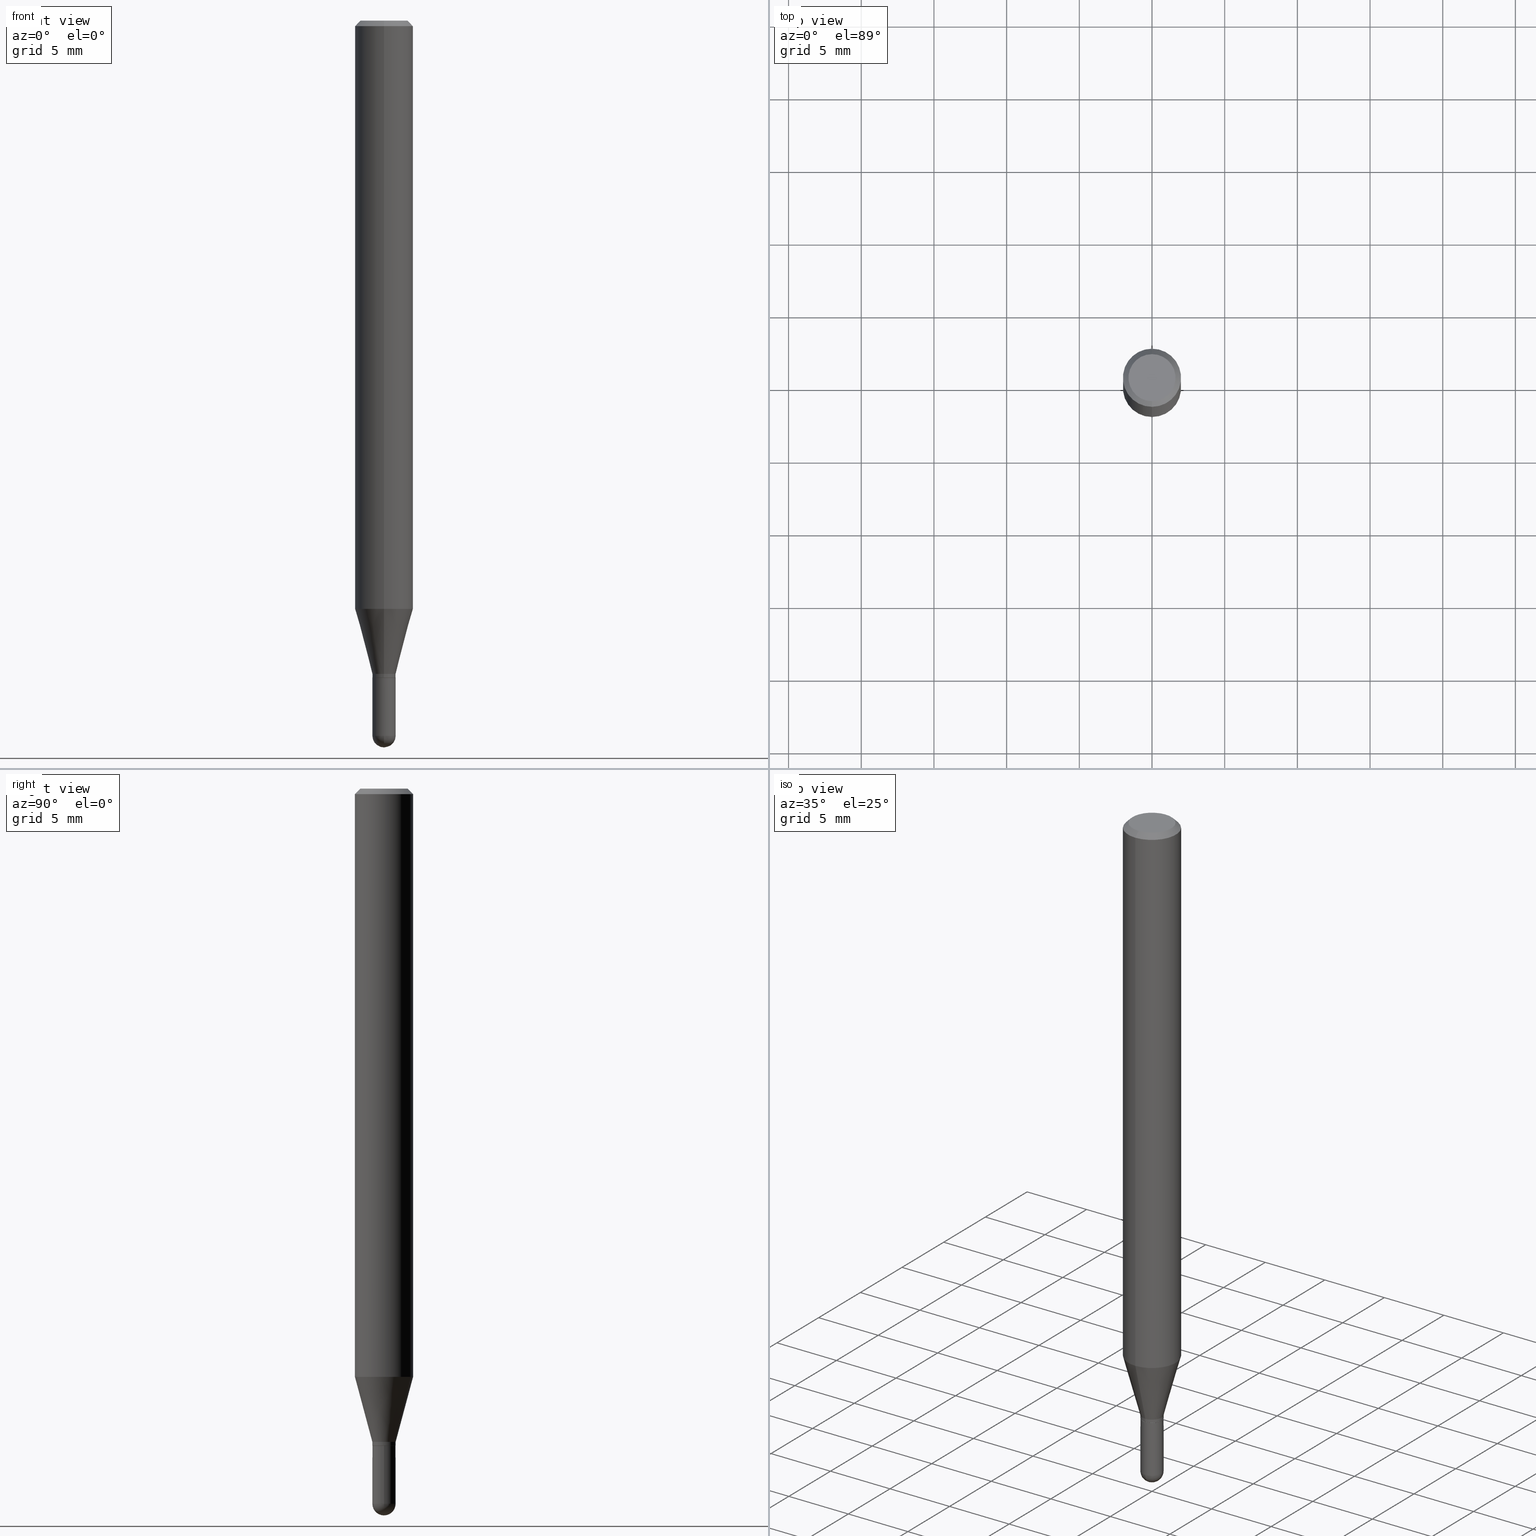
[diagram: canonical four-view strip — front | top / right | iso, engineering-drawing reading convention]
A machine part, canonical four-view strip (front | top / right | iso — engineering-drawing reading convention). The complete STEP part file that produces these views, byte-faithful:
ISO-10303-21;
HEADER;
FILE_DESCRIPTION (( 'STEP AP203' ),
    '1' );
FILE_NAME ('03009.STEP',
    '2024-03-08T18:00:13',
    ( '' ),
    ( '' ),
    'SwSTEP 2.0',
    'SolidWorks 2023',
    '' );
FILE_SCHEMA (( 'CONFIG_CONTROL_DESIGN' ));
ENDSEC;

DATA;
#1 = PERSON ( 'UNSPECIFIED', 'UNSPECIFIED', 'UNSPECIFIED', ('UNSPECIFIED'), ('UNSPECIFIED'), ('UNSPECIFIED') ) ;
#2 = FACE_OUTER_BOUND ( 'NONE', #425, .T. ) ;
#3 = CARTESIAN_POINT ( 'NONE',  ( 3.668279301993772364E-31, -5.237113039164392563E-17, -0.01500000000000001679 ) ) ;
#4 = DIRECTION ( 'NONE',  ( -1.000000000000000000, 6.982962677686265922E-15, -4.883557194083112901E-29 ) ) ;
#5 = AXIS2_PLACEMENT_3D ( 'NONE', #436, #128, #208 ) ;
#6 = DIRECTION ( 'NONE',  ( -6.982962677686265922E-15, -1.000000000000000000, 0.000000000000000000 ) ) ;
#7 = EDGE_CURVE ( 'NONE', #134, #237, #273, .T. ) ;
#8 = CARTESIAN_POINT ( 'NONE',  ( 3.668279301993772364E-31, -5.237113039164392563E-17, -0.01500000000000001679 ) ) ;
#9 = DIRECTION ( 'NONE',  ( -2.445519534662512469E-29, 3.491408692776257814E-15, 1.000000000000000000 ) ) ;
#10 = CARTESIAN_POINT ( 'NONE',  ( 3.896105367546402533E-29, -5.562374765532584086E-15, -1.593160599342370087 ) ) ;
#11 = ORIENTED_EDGE ( 'NONE', *, *, #375, .T. ) ;
#12 = CALENDAR_DATE ( 2024, 8, 3 ) ;
#13 = ORIENTED_EDGE ( 'NONE', *, *, #130, .T. ) ;
#14 = AXIS2_PLACEMENT_3D ( 'NONE', #3, #86, #280 ) ;
#15 = ORIENTED_EDGE ( 'NONE', *, *, #168, .F. ) ;
#16 = APPROVAL_DATE_TIME ( #94, #151 ) ;
#17 = PERSON_AND_ORGANIZATION ( #1, #200 ) ;
#18 = CC_DESIGN_PERSON_AND_ORGANIZATION_ASSIGNMENT ( #259, #217, ( #509 ) ) ;
#19 = APPROVAL_ROLE ( '' ) ;
#20 = AXIS2_PLACEMENT_3D ( 'NONE', #150, #461, #106 ) ;
#21 = LOCAL_TIME ( 13, 0, 13.00000000000000000, #287 ) ;
#22 = DATE_TIME_ROLE ( 'classification_date' ) ;
#23 = VERTEX_POINT ( 'NONE', #470 ) ;
#24 = ORIENTED_EDGE ( 'NONE', *, *, #105, .F. ) ;
#25 = DIRECTION ( 'NONE',  ( -2.445519534662512469E-29, 3.491408692776257814E-15, 1.000000000000000000 ) ) ;
#26 = CARTESIAN_POINT ( 'NONE',  ( -2.199633243470716336E-16, -0.03150000000000582195, -1.769500000000000073 ) ) ;
#27 = AXIS2_PLACEMENT_3D ( 'NONE', #363, #9, #6 ) ;
#28 = DIRECTION ( 'NONE',  ( -6.982962677686265922E-15, -1.000000000000000000, 3.491408692776257420E-15 ) ) ;
#29 = EDGE_CURVE ( 'NONE', #23, #171, #501, .T. ) ;
#30 = CARTESIAN_POINT ( 'NONE',  ( 5.595524044110787031E-16, 0.07875000000000000056, -2.749484345561302999E-16 ) ) ;
#31 = DIRECTION ( 'NONE',  ( -2.445519534662512469E-29, 3.491408692776257814E-15, 1.000000000000000000 ) ) ;
#32 = CC_DESIGN_PERSON_AND_ORGANIZATION_ASSIGNMENT ( #98, #431, ( #114 ) ) ;
#33 = ORIENTED_EDGE ( 'NONE', *, *, #74, .F. ) ;
#34 = DIRECTION ( 'NONE',  ( -2.445468806185136597E-29, 3.491481338843145583E-15, 1.000000000000000000 ) ) ;
#35 = AXIS2_PLACEMENT_3D ( 'NONE', #269, #430, #194 ) ;
#36 = CIRCLE ( 'NONE', #488, 0.07875000000000000056 ) ;
#37 = ORIENTED_EDGE ( 'NONE', *, *, #434, .T. ) ;
#38 = FACE_OUTER_BOUND ( 'NONE', #396, .T. ) ;
#39 = CARTESIAN_POINT ( 'NONE',  ( 0.000000000000000000, 0.000000000000000000, 0.000000000000000000 ) ) ;
#40 = VERTEX_POINT ( 'NONE', #391 ) ;
#41 = CARTESIAN_POINT ( 'NONE',  ( 4.734179303769695037E-29, -6.766856990756487063E-15, -1.937000000000000055 ) ) ;
#42 = FACE_OUTER_BOUND ( 'NONE', #368, .T. ) ;
#43 = EDGE_LOOP ( 'NONE', ( #142, #251, #37, #496 ) ) ;
#44 = EDGE_CURVE ( 'NONE', #312, #303, #384, .T. ) ;
#45 = CYLINDRICAL_SURFACE ( 'NONE', #256, 0.03149999999999992389 ) ;
#46 = DIRECTION ( 'NONE',  ( -2.445468806185136597E-29, 3.491481338843145583E-15, 1.000000000000000000 ) ) ;
#47 = AXIS2_PLACEMENT_3D ( 'NONE', #8, #359, #283 ) ;
#48 =( GEOMETRIC_REPRESENTATION_CONTEXT ( 3 ) GLOBAL_UNCERTAINTY_ASSIGNED_CONTEXT ( ( #454 ) ) GLOBAL_UNIT_ASSIGNED_CONTEXT ( ( #57, #324, #485 ) ) REPRESENTATION_CONTEXT ( 'NONE', 'WORKASPACE' ) );
#49 = DIRECTION ( 'NONE',  ( -2.445519534662512469E-29, 3.491408692776257814E-15, 1.000000000000000000 ) ) ;
#50 = DIRECTION ( 'NONE',  ( 1.000000000000000000, -6.982962677686254878E-15, 0.000000000000000000 ) ) ;
#51 = VERTEX_POINT ( 'NONE', #304 ) ;
#52 = ADVANCED_FACE ( 'NONE', ( #195 ), #191, .F. ) ;
#53 = CARTESIAN_POINT ( 'NONE',  ( -2.199633243470759970E-16, -0.03150000000000651584, -1.779000000000000137 ) ) ;
#54 = EDGE_CURVE ( 'NONE', #463, #176, #499, .T. ) ;
#55 = ORIENTED_EDGE ( 'NONE', *, *, #138, .F. ) ;
#56 = ORIENTED_EDGE ( 'NONE', *, *, #130, .F. ) ;
#57 =( CONVERSION_BASED_UNIT ( 'INCH', #219 ) LENGTH_UNIT ( ) NAMED_UNIT ( #58 ) );
#58 = DIMENSIONAL_EXPONENTS ( 1.000000000000000000, 0.000000000000000000, 0.000000000000000000, 0.000000000000000000, 0.000000000000000000, 0.000000000000000000, 0.000000000000000000 ) ;
#59 = AXIS2_PLACEMENT_3D ( 'NONE', #210, #166, #403 ) ;
#60 = CALENDAR_DATE ( 2024, 8, 3 ) ;
#61 = PERSON_AND_ORGANIZATION ( #1, #200 ) ;
#62 = CIRCLE ( 'NONE', #220, 0.03150000000000019451 ) ;
#63 = ADVANCED_FACE ( 'NONE', ( #504 ), #155, .F. ) ;
#64 = CALENDAR_DATE ( 2024, 8, 3 ) ;
#65 = EDGE_LOOP ( 'NONE', ( #483, #190, #145, #337 ) ) ;
#66 = EDGE_CURVE ( 'NONE', #213, #388, #351, .T. ) ;
#67 = EDGE_LOOP ( 'NONE', ( #227, #211, #262, #409, #427 ) ) ;
#68 = EDGE_CURVE ( 'NONE', #506, #23, #197, .T. ) ;
#69 = DIRECTION ( 'NONE',  ( -4.851104656540965064E-15, -0.7071067811865501263, -0.7071067811865449082 ) ) ;
#70 = EDGE_CURVE ( 'NONE', #51, #498, #62, .T. ) ;
#71 = CARTESIAN_POINT ( 'NONE',  ( 2.199633243471609228E-16, 0.03149999999999378297, -1.779499999999999860 ) ) ;
#72 = CC_DESIGN_APPROVAL ( #348, ( #114 ) ) ;
#73 = EDGE_LOOP ( 'NONE', ( #154, #91, #400, #174 ) ) ;
#74 = EDGE_CURVE ( 'NONE', #101, #506, #469, .T. ) ;
#75 = CARTESIAN_POINT ( 'NONE',  ( -2.199633243471168452E-16, -0.03149999999999992389, 1.099793738224518488E-16 ) ) ;
#76 = ORIENTED_EDGE ( 'NONE', *, *, #453, .T. ) ;
#77 = DIRECTION ( 'NONE',  ( -6.982962677686265922E-15, -1.000000000000000000, 3.491408692776257814E-15 ) ) ;
#78 = FACE_OUTER_BOUND ( 'NONE', #294, .T. ) ;
#79 = ORIENTED_EDGE ( 'NONE', *, *, #135, .F. ) ;
#80 = CARTESIAN_POINT ( 'NONE',  ( 5.499083108677937401E-16, 0.07874999999999994504, -0.01500000000000029261 ) ) ;
#81 = CC_DESIGN_DATE_AND_TIME_ASSIGNMENT ( #467, #22, ( #114 ) ) ;
#82 = AXIS2_PLACEMENT_3D ( 'NONE', #246, #358, #402 ) ;
#83 = DIRECTION ( 'NONE',  ( -2.445468806185136597E-29, 3.491481338843145583E-15, 1.000000000000000000 ) ) ;
#84 = DIRECTION ( 'NONE',  ( 6.982962677686265922E-15, 1.000000000000000000, 0.000000000000000000 ) ) ;
#85 = CARTESIAN_POINT ( 'NONE',  ( 4.114624516032520270E-46, -5.874349233022489660E-32, -1.682515497305298993E-17 ) ) ;
#86 = DIRECTION ( 'NONE',  ( 2.445519534662512469E-29, -3.491408692776257814E-15, -1.000000000000000000 ) ) ;
#87 = DIRECTION ( 'NONE',  ( -6.982962677686265922E-15, -1.000000000000000000, 0.000000000000000000 ) ) ;
#88 = CARTESIAN_POINT ( 'NONE',  ( 4.975360907851465623E-16, 0.06374999999999998723, -2.394024591375393642E-16 ) ) ;
#89 = CARTESIAN_POINT ( 'NONE',  ( 3.668279301993772364E-31, -5.237113039164392563E-17, -0.01500000000000001679 ) ) ;
#90 = VECTOR ( 'NONE', #121, 39.37007874015748143 ) ;
#91 = ORIENTED_EDGE ( 'NONE', *, *, #135, .T. ) ;
#92 = DIRECTION ( 'NONE',  ( 0.000000000000000000, 0.000000000000000000, 1.000000000000000000 ) ) ;
#93 = EDGE_LOOP ( 'NONE', ( #497, #76 ) ) ;
#94 = DATE_AND_TIME ( #12, #21 ) ;
#95 = EDGE_CURVE ( 'NONE', #303, #378, #267, .T. ) ;
#96 = CIRCLE ( 'NONE', #284, 0.03150000000000000716 ) ;
#97 = APPROVAL_DATE_TIME ( #490, #495 ) ;
#98 = PERSON_AND_ORGANIZATION ( #1, #200 ) ;
#99 = ORIENTED_EDGE ( 'NONE', *, *, #502, .F. ) ;
#100 = SHAPE_DEFINITION_REPRESENTATION ( #373, #314 ) ;
#101 = VERTEX_POINT ( 'NONE', #26 ) ;
#102 = VECTOR ( 'NONE', #224, 39.37007874015748143 ) ;
#103 = CIRCLE ( 'NONE', #508, 0.07875000000000000056 ) ;
#104 = CC_DESIGN_APPROVAL ( #151, ( #181 ) ) ;
#105 = EDGE_CURVE ( 'NONE', #101, #335, #226, .T. ) ;
#106 = DIRECTION ( 'NONE',  ( -6.982962677686265922E-15, -1.000000000000000000, 0.000000000000000000 ) ) ;
#107 = ADVANCED_FACE ( 'NONE', ( #382 ), #109, .T. ) ;
#108 = ORIENTED_EDGE ( 'NONE', *, *, #164, .T. ) ;
#109 = CYLINDRICAL_SURFACE ( 'NONE', #35, 0.03149999999999992389 ) ;
#110 = ORIENTED_EDGE ( 'NONE', *, *, #453, .F. ) ;
#111 = CARTESIAN_POINT ( 'NONE',  ( -2.199633243470716336E-16, -0.03150000000000582195, -1.769500000000000073 ) ) ;
#112 = DIRECTION ( 'NONE',  ( -1.000000000000000000, 6.982962677686265922E-15, -4.883557194083112901E-29 ) ) ;
#113 = AXIS2_PLACEMENT_3D ( 'NONE', #279, #159, #471 ) ;
#114 = SECURITY_CLASSIFICATION ( '', '', #141 ) ;
#115 = DIRECTION ( 'NONE',  ( -2.445519534662512469E-29, 3.491408692776257814E-15, 1.000000000000000000 ) ) ;
#116 = CARTESIAN_POINT ( 'NONE',  ( 4.734179303769695037E-29, -6.766856990756487063E-15, -1.937000000000000055 ) ) ;
#117 = CARTESIAN_POINT ( 'NONE',  ( 4.351802011931940381E-29, -6.212961768795349013E-15, -1.779499999999999638 ) ) ;
#118 = ORIENTED_EDGE ( 'NONE', *, *, #95, .F. ) ;
#119 = CARTESIAN_POINT ( 'NONE',  ( 2.220446049250754843E-16, 0.03099999999999378253, -1.779499999999999638 ) ) ;
#120 = DIRECTION ( 'NONE',  ( -2.445519534662512469E-29, 3.491408692776257814E-15, 1.000000000000000000 ) ) ;
#121 = DIRECTION ( 'NONE',  ( -2.445519534662512469E-29, 3.491408692776257814E-15, 1.000000000000000000 ) ) ;
#122 = AXIS2_PLACEMENT_3D ( 'NONE', #433, #115, #28 ) ;
#123 = CIRCLE ( 'NONE', #487, 0.03149999999999996553 ) ;
#124 = FACE_OUTER_BOUND ( 'NONE', #330, .T. ) ;
#125 = DIRECTION ( 'NONE',  ( -7.105427357601000281E-15, -1.000000000000000000, 0.000000000000000000 ) ) ;
#126 = SPHERICAL_SURFACE ( 'NONE', #429, 0.03149999999999996553 ) ;
#127 = CARTESIAN_POINT ( 'NONE',  ( 0.000000000000000000, 0.000000000000000000, 0.000000000000000000 ) ) ;
#128 = DIRECTION ( 'NONE',  ( -2.445519534662512469E-29, 3.491408692776257814E-15, 1.000000000000000000 ) ) ;
#129 = CC_DESIGN_PERSON_AND_ORGANIZATION_ASSIGNMENT ( #61, #452, ( #181 ) ) ;
#130 = EDGE_CURVE ( 'NONE', #498, #101, #464, .T. ) ;
#131 = DIRECTION ( 'NONE',  ( -6.982962677686265922E-15, -1.000000000000000000, 0.000000000000000000 ) ) ;
#132 = VECTOR ( 'NONE', #265, 39.37007874015748143 ) ;
#133 = APPLICATION_PROTOCOL_DEFINITION ( 'international standard', 'config_control_design', 1994, #413 ) ;
#134 = VERTEX_POINT ( 'NONE', #507 ) ;
#135 = EDGE_CURVE ( 'NONE', #176, #51, #389, .T. ) ;
#136 = DATE_AND_TIME ( #285, #293 ) ;
#137 = DIRECTION ( 'NONE',  ( -2.445519534662512469E-29, 3.491408692776257814E-15, 1.000000000000000000 ) ) ;
#138 = EDGE_CURVE ( 'NONE', #40, #388, #238, .T. ) ;
#139 = ORIENTED_EDGE ( 'NONE', *, *, #291, .T. ) ;
#140 = CIRCLE ( 'NONE', #421, 0.03150000000000000716 ) ;
#141 = SECURITY_CLASSIFICATION_LEVEL ( 'unclassified' ) ;
#142 = ORIENTED_EDGE ( 'NONE', *, *, #325, .F. ) ;
#143 = EDGE_LOOP ( 'NONE', ( #79, #404, #108, #218 ) ) ;
#144 = PERSON_AND_ORGANIZATION ( #1, #200 ) ;
#145 = ORIENTED_EDGE ( 'NONE', *, *, #160, .T. ) ;
#146 = DIRECTION ( 'NONE',  ( -6.982962677686265922E-15, -1.000000000000000000, 0.000000000000000000 ) ) ;
#147 = CIRCLE ( 'NONE', #264, 0.03150000000000000022 ) ;
#148 = APPROVAL_ROLE ( '' ) ;
#149 = EDGE_LOOP ( 'NONE', ( #491, #254, #33, #56 ) ) ;
#150 = CARTESIAN_POINT ( 'NONE',  ( 4.327346816585315421E-29, -6.178047681867588652E-15, -1.769500000000000073 ) ) ;
#151 = APPROVAL ( #372, 'UNSPECIFIED' ) ;
#152 = ORIENTED_EDGE ( 'NONE', *, *, #66, .F. ) ;
#153 = CARTESIAN_POINT ( 'NONE',  ( 2.238209617644722851E-16, 0.03149999999999347072, -1.769500000000000073 ) ) ;
#154 = ORIENTED_EDGE ( 'NONE', *, *, #54, .T. ) ;
#155 = PLANE ( 'NONE',  #415 ) ;
#156 = LINE ( 'NONE', #355, #90 ) ;
#157 = AXIS2_PLACEMENT_3D ( 'NONE', #117, #321, #87 ) ;
#158 = CONICAL_SURFACE ( 'NONE', #361, 0.07875000000000000056, 0.7853981633974485010 ) ;
#159 = DIRECTION ( 'NONE',  ( -2.445468806185136597E-29, 3.491481338843145583E-15, 1.000000000000000000 ) ) ;
#160 = EDGE_CURVE ( 'NONE', #335, #378, #156, .T. ) ;
#161 = DIRECTION ( 'NONE',  ( -2.445468806185136877E-29, 3.491481338843145188E-15, 1.000000000000000000 ) ) ;
#162 = LINE ( 'NONE', #80, #186 ) ;
#163 = CYLINDRICAL_SURFACE ( 'NONE', #113, 0.03150000000000000716 ) ;
#164 = EDGE_CURVE ( 'NONE', #463, #498, #165, .T. ) ;
#165 = LINE ( 'NONE', #440, #493 ) ;
#166 = DIRECTION ( 'NONE',  ( 2.445519534662512189E-29, -3.491408692776257814E-15, -1.000000000000000000 ) ) ;
#167 = CARTESIAN_POINT ( 'NONE',  ( -4.888104823412212925E-16, -0.06374999999999998723, 2.057521491914333720E-16 ) ) ;
#168 = EDGE_CURVE ( 'NONE', #51, #506, #302, .T. ) ;
#169 = DIRECTION ( 'NONE',  ( -2.445519534662512469E-29, 3.491408692776257814E-15, 1.000000000000000000 ) ) ;
#170 = AXIS2_PLACEMENT_3D ( 'NONE', #417, #92, #253 ) ;
#171 = VERTEX_POINT ( 'NONE', #244 ) ;
#172 = CARTESIAN_POINT ( 'NONE',  ( -0.03150000000000000022, -6.264224236140843425E-15, -1.779499999999999860 ) ) ;
#173 = CARTESIAN_POINT ( 'NONE',  ( -2.238209617643840806E-16, -0.03150000000000675177, -1.937000000000000055 ) ) ;
#174 = ORIENTED_EDGE ( 'NONE', *, *, #164, .F. ) ;
#175 = DIRECTION ( 'NONE',  ( -6.982962677686264344E-15, -1.000000000000000000, 3.496114991891765576E-15 ) ) ;
#176 = VERTEX_POINT ( 'NONE', #119 ) ;
#177 = DIRECTION ( 'NONE',  ( -2.445519534662512469E-29, 3.491408692776257814E-15, 1.000000000000000000 ) ) ;
#178 = CIRCLE ( 'NONE', #27, 0.03149999999999964634 ) ;
#179 = CONICAL_SURFACE ( 'NONE', #157, 0.03099999999999999978, 0.7853981633980202659 ) ;
#180 = CC_DESIGN_SECURITY_CLASSIFICATION ( #114, ( #509 ) ) ;
#181 = PRODUCT_DEFINITION ( 'UNKNOWN', '', #509, #258 ) ;
#182 = ORIENTED_EDGE ( 'NONE', *, *, #434, .F. ) ;
#183 = COORDINATED_UNIVERSAL_TIME_OFFSET ( 5, 0, .BEHIND. ) ;
#184 = APPROVAL_ROLE ( '' ) ;
#185 = PERSON_AND_ORGANIZATION ( #1, #200 ) ;
#186 = VECTOR ( 'NONE', #239, 39.37007874015748143 ) ;
#187 = ORIENTED_EDGE ( 'NONE', *, *, #44, .F. ) ;
#188 = ADVANCED_FACE ( 'NONE', ( #198 ), #350, .T. ) ;
#189 = ORIENTED_EDGE ( 'NONE', *, *, #70, .T. ) ;
#190 = ORIENTED_EDGE ( 'NONE', *, *, #502, .T. ) ;
#191 = PLANE ( 'NONE',  #369 ) ;
#192 = ADVANCED_FACE ( 'NONE', ( #305 ), #274, .T. ) ;
#193 = AXIS2_PLACEMENT_3D ( 'NONE', #209, #49, #360 ) ;
#194 = DIRECTION ( 'NONE',  ( -6.982962677686265922E-15, -1.000000000000000000, 3.491408692776257420E-15 ) ) ;
#195 = FACE_OUTER_BOUND ( 'NONE', #93, .T. ) ;
#196 = CARTESIAN_POINT ( 'NONE',  ( 4.736873077580609915E-29, -6.762999353339173038E-15, -1.937000000000000055 ) ) ;
#197 = LINE ( 'NONE', #153, #132 ) ;
#198 = FACE_OUTER_BOUND ( 'NONE', #276, .T. ) ;
#199 = CONICAL_SURFACE ( 'NONE', #14, 0.07875000000000000056, 0.7853981633974485010 ) ;
#200 = ORGANIZATION ( 'UNSPECIFIED', 'UNSPECIFIED', '' ) ;
#201 = CARTESIAN_POINT ( 'NONE',  ( 4.350579252164609413E-29, -6.211216064448963204E-15, -1.779000000000000137 ) ) ;
#202 = DIRECTION ( 'NONE',  ( 1.000000000000000000, -6.982962677686255667E-15, 0.000000000000000000 ) ) ;
#203 = EDGE_CURVE ( 'NONE', #213, #295, #437, .T. ) ;
#204 = CARTESIAN_POINT ( 'NONE',  ( 3.668279301993772364E-31, -5.237113039164392563E-17, -0.01500000000000001679 ) ) ;
#205 = DIRECTION ( 'NONE',  ( -2.445468806185136597E-29, 3.491481338843145583E-15, 1.000000000000000000 ) ) ;
#206 = EDGE_CURVE ( 'NONE', #312, #171, #162, .T. ) ;
#207 = FACE_OUTER_BOUND ( 'NONE', #149, .T. ) ;
#208 = DIRECTION ( 'NONE',  ( -6.982962677686265922E-15, -1.000000000000000000, 0.000000000000000000 ) ) ;
#209 = CARTESIAN_POINT ( 'NONE',  ( 4.327346816585315421E-29, -6.178047681867588652E-15, -1.769500000000000073 ) ) ;
#210 = CARTESIAN_POINT ( 'NONE',  ( 4.451638707024993845E-16, 0.06374999999999998723, -2.309898816510129093E-16 ) ) ;
#211 = ORIENTED_EDGE ( 'NONE', *, *, #7, .T. ) ;
#212 = CARTESIAN_POINT ( 'NONE',  ( 3.916866830877951170E-16, 0.03149999999999346378, -1.769500000000000073 ) ) ;
#213 = VERTEX_POINT ( 'NONE', #397 ) ;
#214 = CIRCLE ( 'NONE', #316, 0.03150000000000000716 ) ;
#215 = CIRCLE ( 'NONE', #298, 0.07875000000000000056 ) ;
#216 = ORIENTED_EDGE ( 'NONE', *, *, #286, .F. ) ;
#217 = PERSON_AND_ORGANIZATION_ROLE ( 'creator' ) ;
#218 = ORIENTED_EDGE ( 'NONE', *, *, #70, .F. ) ;
#219 = LENGTH_MEASURE_WITH_UNIT ( LENGTH_MEASURE( 0.02539999999999999897 ), #376 );
#220 = AXIS2_PLACEMENT_3D ( 'NONE', #233, #466, #146 ) ;
#221 = ORIENTED_EDGE ( 'NONE', *, *, #475, .F. ) ;
#222 = LOCAL_TIME ( 13, 0, 13.00000000000000000, #424 ) ;
#223 = ORIENTED_EDGE ( 'NONE', *, *, #68, .F. ) ;
#224 = DIRECTION ( 'NONE',  ( -2.445519534662512469E-29, 3.491408692776257814E-15, 1.000000000000000000 ) ) ;
#225 = DATE_AND_TIME ( #64, #241 ) ;
#226 = LINE ( 'NONE', #111, #406 ) ;
#227 = ORIENTED_EDGE ( 'NONE', *, *, #475, .T. ) ;
#228 = CIRCLE ( 'NONE', #5, 0.03099999999999999978 ) ;
#229 = ADVANCED_FACE ( 'NONE', ( #38 ), #394, .T. ) ;
#230 = DIRECTION ( 'NONE',  ( -6.982962677686265922E-15, -1.000000000000000000, 0.000000000000000000 ) ) ;
#231 = DIRECTION ( 'NONE',  ( -2.445519534662512469E-29, 3.491408692776257814E-15, 1.000000000000000000 ) ) ;
#232 = CARTESIAN_POINT ( 'NONE',  ( 0.000000000000000000, 0.000000000000000000, 0.000000000000000000 ) ) ;
#233 = CARTESIAN_POINT ( 'NONE',  ( 4.350579252164609413E-29, -6.211216064448963204E-15, -1.779000000000000137 ) ) ;
#234 = CARTESIAN_POINT ( 'NONE',  ( 0.03150000000000000716, -2.199633243471174122E-16, 1.535995684375720062E-30 ) ) ;
#235 = CC_DESIGN_DATE_AND_TIME_ASSIGNMENT ( #136, #261, ( #181 ) ) ;
#236 = DIRECTION ( 'NONE',  ( 1.000000000000000000, -6.982962677686254878E-15, 0.000000000000000000 ) ) ;
#237 = VERTEX_POINT ( 'NONE', #172 ) ;
#238 = CIRCLE ( 'NONE', #370, 0.03149999999999996553 ) ;
#239 = DIRECTION ( 'NONE',  ( 4.937700262164548831E-15, 0.7071067811865452413, -0.7071067811865497932 ) ) ;
#240 = CIRCLE ( 'NONE', #477, 0.03150000000000019451 ) ;
#241 = LOCAL_TIME ( 13, 0, 13.00000000000000000, #336 ) ;
#242 = DIRECTION ( 'NONE',  ( 1.000000000000000000, -6.982962677686255667E-15, 0.000000000000000000 ) ) ;
#243 = ORIENTED_EDGE ( 'NONE', *, *, #7, .F. ) ;
#244 = CARTESIAN_POINT ( 'NONE',  ( 5.595524044111180475E-16, 0.07874999999999994504, -0.01500000000000029261 ) ) ;
#245 = FACE_OUTER_BOUND ( 'NONE', #43, .T. ) ;
#246 = CARTESIAN_POINT ( 'NONE',  ( 0.000000000000000000, 0.000000000000000000, 0.000000000000000000 ) ) ;
#247 = DIRECTION ( 'NONE',  ( 6.982962677686265922E-15, 1.000000000000000000, 0.000000000000000000 ) ) ;
#248 = DIRECTION ( 'NONE',  ( -2.445519534662512469E-29, 3.491408692776257814E-15, 1.000000000000000000 ) ) ;
#249 = AXIS2_PLACEMENT_3D ( 'NONE', #116, #112, #390 ) ;
#250 = CARTESIAN_POINT ( 'NONE',  ( -5.499083108677930499E-16, -0.07875000000000004219, -0.01499999999999974097 ) ) ;
#251 = ORIENTED_EDGE ( 'NONE', *, *, #95, .T. ) ;
#252 = ADVANCED_FACE ( 'NONE', ( #443 ), #199, .T. ) ;
#253 = DIRECTION ( 'NONE',  ( 1.000000000000000000, 0.000000000000000000, 0.000000000000000000 ) ) ;
#254 = ORIENTED_EDGE ( 'NONE', *, *, #168, .T. ) ;
#255 = PERSON_AND_ORGANIZATION ( #1, #200 ) ;
#256 = AXIS2_PLACEMENT_3D ( 'NONE', #127, #478, #323 ) ;
#257 = EDGE_CURVE ( 'NONE', #171, #378, #103, .T. ) ;
#258 = DESIGN_CONTEXT ( 'detailed design', #365, 'design' ) ;
#259 = PERSON_AND_ORGANIZATION ( #1, #200 ) ;
#260 = MANIFOLD_SOLID_BREP ( 'Body-Move/Copy2[1]', #332 ) ;
#261 = DATE_TIME_ROLE ( 'creation_date' ) ;
#262 = ORIENTED_EDGE ( 'NONE', *, *, #486, .F. ) ;
#263 = AXIS2_PLACEMENT_3D ( 'NONE', #85, #441, #408 ) ;
#264 = AXIS2_PLACEMENT_3D ( 'NONE', #438, #83, #242 ) ;
#265 = DIRECTION ( 'NONE',  ( 1.839019923739603076E-15, 0.2588190451025253469, 0.9659258262890670910 ) ) ;
#266 = CC_DESIGN_PERSON_AND_ORGANIZATION_ASSIGNMENT ( #185, #494, ( #509 ) ) ;
#267 = LINE ( 'NONE', #307, #439 ) ;
#268 = ADVANCED_FACE ( 'NONE', ( #207 ), #45, .T. ) ;
#269 = CARTESIAN_POINT ( 'NONE',  ( 0.000000000000000000, 0.000000000000000000, 0.000000000000000000 ) ) ;
#270 = VECTOR ( 'NONE', #161, 39.37007874015748143 ) ;
#271 = CIRCLE ( 'NONE', #47, 0.07875000000000000056 ) ;
#272 = CARTESIAN_POINT ( 'NONE',  ( 4.351802011931940941E-29, -6.212961768795349802E-15, -1.779499999999999860 ) ) ;
#273 = LINE ( 'NONE', #426, #270 ) ;
#274 = CYLINDRICAL_SURFACE ( 'NONE', #306, 0.07875000000000000056 ) ;
#275 = PLANE ( 'NONE',  #59 ) ;
#276 = EDGE_LOOP ( 'NONE', ( #300, #456, #152, #299 ) ) ;
#277 = DIRECTION ( 'NONE',  ( -6.982962677686265922E-15, -1.000000000000000000, 0.000000000000000000 ) ) ;
#278 = CONICAL_SURFACE ( 'NONE', #449, 0.03149999999999964634, 0.2617993877991506846 ) ;
#279 = CARTESIAN_POINT ( 'NONE',  ( 0.000000000000000000, 0.000000000000000000, 0.000000000000000000 ) ) ;
#280 = DIRECTION ( 'NONE',  ( 6.982962677686264344E-15, 1.000000000000000000, -3.496114991891765576E-15 ) ) ;
#281 = DIRECTION ( 'NONE',  ( 2.445519534662512469E-29, -3.491408692776257814E-15, -1.000000000000000000 ) ) ;
#282 = CARTESIAN_POINT ( 'NONE',  ( 0.03150000000000000022, -6.433054366818493875E-15, -1.779499999999999860 ) ) ;
#283 = DIRECTION ( 'NONE',  ( -6.982962677686264344E-15, -1.000000000000000000, 3.496114991891765576E-15 ) ) ;
#284 = AXIS2_PLACEMENT_3D ( 'NONE', #313, #315, #398 ) ;
#285 = CALENDAR_DATE ( 2024, 8, 3 ) ;
#286 = EDGE_CURVE ( 'NONE', #506, #101, #178, .T. ) ;
#287 = COORDINATED_UNIVERSAL_TIME_OFFSET ( 5, 0, .BEHIND. ) ;
#288 = ADVANCED_FACE ( 'NONE', ( #320 ), #297, .T. ) ;
#289 = DIRECTION ( 'NONE',  ( -6.982962677686264344E-15, -1.000000000000000000, 3.469013325287953293E-15 ) ) ;
#290 = MECHANICAL_CONTEXT ( 'NONE', #413, 'mechanical' ) ;
#291 = EDGE_CURVE ( 'NONE', #40, #460, #123, .T. ) ;
#292 = AXIS2_PLACEMENT_3D ( 'NONE', #484, #248, #131 ) ;
#293 = LOCAL_TIME ( 13, 0, 13.00000000000000000, #183 ) ;
#294 = EDGE_LOOP ( 'NONE', ( #243, #11, #296, #338, #110 ) ) ;
#295 = VERTEX_POINT ( 'NONE', #282 ) ;
#296 = ORIENTED_EDGE ( 'NONE', *, *, #385, .T. ) ;
#297 = CONICAL_SURFACE ( 'NONE', #292, 0.03099999999999999978, 0.7853981633980202659 ) ;
#298 = AXIS2_PLACEMENT_3D ( 'NONE', #489, #177, #289 ) ;
#299 = ORIENTED_EDGE ( 'NONE', *, *, #385, .F. ) ;
#300 = ORIENTED_EDGE ( 'NONE', *, *, #291, .F. ) ;
#301 = DIRECTION ( 'NONE',  ( -1.807323732225332900E-15, -0.2588190451025185745, 0.9659258262890689783 ) ) ;
#302 = LINE ( 'NONE', #309, #500 ) ;
#303 = VERTEX_POINT ( 'NONE', #167 ) ;
#304 = CARTESIAN_POINT ( 'NONE',  ( 2.238209617644756377E-16, 0.03149999999999387318, -1.779000000000000137 ) ) ;
#305 = FACE_OUTER_BOUND ( 'NONE', #354, .T. ) ;
#306 = AXIS2_PLACEMENT_3D ( 'NONE', #232, #31, #435 ) ;
#307 = CARTESIAN_POINT ( 'NONE',  ( -5.402642173245076924E-16, -0.07875000000000004219, -0.01499999999999974097 ) ) ;
#308 = APPROVAL_PERSON_ORGANIZATION ( #255, #151, #19 ) ;
#309 = CARTESIAN_POINT ( 'NONE',  ( 2.238209617644309685E-16, 0.03149999999999992389, -1.099793738224518488E-16 ) ) ;
#310 = DIRECTION ( 'NONE',  ( -2.445468806185136597E-29, 3.491481338843145583E-15, 1.000000000000000000 ) ) ;
#311 = ADVANCED_FACE ( 'NONE', ( #317 ), #446, .T. ) ;
#312 = VERTEX_POINT ( 'NONE', #88 ) ;
#313 = CARTESIAN_POINT ( 'NONE',  ( 4.736873077580609915E-29, -6.762999353339173038E-15, -1.937000000000000055 ) ) ;
#314 = ADVANCED_BREP_SHAPE_REPRESENTATION ( '03009', ( #260, #432, #170 ), #48 ) ;
#315 = DIRECTION ( 'NONE',  ( -2.445468806185136597E-29, 3.491481338843145583E-15, 1.000000000000000000 ) ) ;
#316 = AXIS2_PLACEMENT_3D ( 'NONE', #362, #46, #50 ) ;
#317 = FACE_OUTER_BOUND ( 'NONE', #65, .T. ) ;
#318 = CARTESIAN_POINT ( 'NONE',  ( -2.164718430082306973E-16, -0.03100000000000621356, -1.779499999999999638 ) ) ;
#319 = ORIENTED_EDGE ( 'NONE', *, *, #375, .F. ) ;
#320 = FACE_OUTER_BOUND ( 'NONE', #73, .T. ) ;
#321 = DIRECTION ( 'NONE',  ( -2.445519534662512469E-29, 3.491408692776257814E-15, 1.000000000000000000 ) ) ;
#322 = ORIENTED_EDGE ( 'NONE', *, *, #418, .F. ) ;
#323 = DIRECTION ( 'NONE',  ( -6.982962677686265922E-15, -1.000000000000000000, 3.491408692776257420E-15 ) ) ;
#324 =( NAMED_UNIT ( * ) PLANE_ANGLE_UNIT ( ) SI_UNIT ( $, .RADIAN. ) );
#325 = EDGE_CURVE ( 'NONE', #303, #312, #395, .T. ) ;
#326 = ADVANCED_FACE ( 'NONE', ( #353 ), #179, .T. ) ;
#327 = DIRECTION ( 'NONE',  ( -6.982962677686264344E-15, -1.000000000000000000, 3.469013325287953293E-15 ) ) ;
#328 = LOCAL_TIME ( 13, 0, 13.00000000000000000, #410 ) ;
#329 = ADVANCED_FACE ( 'NONE', ( #2 ), #278, .T. ) ;
#330 = EDGE_LOOP ( 'NONE', ( #342, #503 ) ) ;
#331 = ADVANCED_FACE ( 'NONE', ( #42 ), #126, .T. ) ;
#332 = CLOSED_SHELL ( 'NONE', ( #339, #331, #52, #188, #442 ) ) ;
#333 = PERSON_AND_ORGANIZATION ( #1, #200 ) ;
#334 = APPROVAL_PERSON_ORGANIZATION ( #333, #495, #184 ) ;
#335 = VERTEX_POINT ( 'NONE', #364 ) ;
#336 = COORDINATED_UNIVERSAL_TIME_OFFSET ( 5, 0, .BEHIND. ) ;
#337 = ORIENTED_EDGE ( 'NONE', *, *, #257, .F. ) ;
#338 = ORIENTED_EDGE ( 'NONE', *, *, #203, .T. ) ;
#339 = ADVANCED_FACE ( 'NONE', ( #482 ), #163, .T. ) ;
#340 = DIRECTION ( 'NONE',  ( 1.000000000000000000, -6.982962677686254878E-15, 0.000000000000000000 ) ) ;
#341 = VECTOR ( 'NONE', #462, 39.37007874015748854 ) ;
#342 = ORIENTED_EDGE ( 'NONE', *, *, #44, .T. ) ;
#343 = DIRECTION ( 'NONE',  ( -2.445519534662512469E-29, 3.491408692776257814E-15, 1.000000000000000000 ) ) ;
#344 = APPROVAL_STATUS ( 'not_yet_approved' ) ;
#345 = ORIENTED_EDGE ( 'NONE', *, *, #510, .T. ) ;
#346 = DIRECTION ( 'NONE',  ( -1.000000000000000000, 6.982962677686265922E-15, -4.876176775795935793E-29 ) ) ;
#347 = DIRECTION ( 'NONE',  ( -4.937700262167370586E-15, -0.7071067811869493624, 0.7071067811861454500 ) ) ;
#348 = APPROVAL ( #344, 'UNSPECIFIED' ) ;
#349 = CARTESIAN_POINT ( 'NONE',  ( 4.351802011931940381E-29, -6.212961768795349013E-15, -1.779499999999999638 ) ) ;
#350 = SPHERICAL_SURFACE ( 'NONE', #249, 0.03149999999999996553 ) ;
#351 = CIRCLE ( 'NONE', #383, 0.03150000000000000716 ) ;
#352 = ORIENTED_EDGE ( 'NONE', *, *, #105, .T. ) ;
#353 = FACE_OUTER_BOUND ( 'NONE', #143, .T. ) ;
#354 = EDGE_LOOP ( 'NONE', ( #345, #381, #182, #380 ) ) ;
#355 = CARTESIAN_POINT ( 'NONE',  ( -5.499083108677933457E-16, -0.07875000000000000056, 2.749484345561302999E-16 ) ) ;
#356 = CARTESIAN_POINT ( 'NONE',  ( 4.327346816585315421E-29, -6.178047681867588652E-15, -1.769500000000000073 ) ) ;
#357 = ORIENTED_EDGE ( 'NONE', *, *, #510, .F. ) ;
#358 = DIRECTION ( 'NONE',  ( -2.445519534662512469E-29, 3.491408692776257814E-15, 1.000000000000000000 ) ) ;
#359 = DIRECTION ( 'NONE',  ( -2.445519534662512469E-29, 3.491408692776257814E-15, 1.000000000000000000 ) ) ;
#360 = DIRECTION ( 'NONE',  ( -6.982962677686265922E-15, -1.000000000000000000, 0.000000000000000000 ) ) ;
#361 = AXIS2_PLACEMENT_3D ( 'NONE', #89, #281, #399 ) ;
#362 = CARTESIAN_POINT ( 'NONE',  ( 4.736873077580609915E-29, -6.762999353339173038E-15, -1.937000000000000055 ) ) ;
#363 = CARTESIAN_POINT ( 'NONE',  ( 4.327346816585315421E-29, -6.178047681867588652E-15, -1.769500000000000073 ) ) ;
#364 = CARTESIAN_POINT ( 'NONE',  ( -5.499083108677546915E-16, -0.07875000000000557943, -1.593160599342369865 ) ) ;
#365 = APPLICATION_CONTEXT ( 'configuration controlled 3d designs of mechanical parts and assemblies' ) ;
#366 = PERSON_AND_ORGANIZATION_ROLE ( 'design_owner' ) ;
#367 = ORIENTED_EDGE ( 'NONE', *, *, #68, .T. ) ;
#368 = EDGE_LOOP ( 'NONE', ( #55, #139, #319, #221 ) ) ;
#369 = AXIS2_PLACEMENT_3D ( 'NONE', #71, #423, #346 ) ;
#370 = AXIS2_PLACEMENT_3D ( 'NONE', #428, #473, #84 ) ;
#371 = CC_DESIGN_APPROVAL ( #495, ( #509 ) ) ;
#372 = APPROVAL_STATUS ( 'not_yet_approved' ) ;
#373 = PRODUCT_DEFINITION_SHAPE ( 'NONE', 'NONE',  #181 ) ;
#374 = ORIENTED_EDGE ( 'NONE', *, *, #74, .T. ) ;
#375 = EDGE_CURVE ( 'NONE', #134, #460, #214, .T. ) ;
#376 =( LENGTH_UNIT ( ) NAMED_UNIT ( * ) SI_UNIT ( $, .METRE. ) );
#377 = AXIS2_PLACEMENT_3D ( 'NONE', #474, #205, #202 ) ;
#378 = VERTEX_POINT ( 'NONE', #250 ) ;
#379 = ADVANCED_FACE ( 'NONE', ( #124 ), #275, .F. ) ;
#380 = ORIENTED_EDGE ( 'NONE', *, *, #160, .F. ) ;
#381 = ORIENTED_EDGE ( 'NONE', *, *, #29, .T. ) ;
#382 = FACE_OUTER_BOUND ( 'NONE', #386, .T. ) ;
#383 = AXIS2_PLACEMENT_3D ( 'NONE', #196, #472, #340 ) ;
#384 = CIRCLE ( 'NONE', #122, 0.06374999999999998723 ) ;
#385 = EDGE_CURVE ( 'NONE', #460, #213, #96, .T. ) ;
#386 = EDGE_LOOP ( 'NONE', ( #15, #189, #13, #216 ) ) ;
#387 = APPROVAL_DATE_TIME ( #225, #348 ) ;
#388 = VERTEX_POINT ( 'NONE', #480 ) ;
#389 = LINE ( 'NONE', #412, #341 ) ;
#390 = DIRECTION ( 'NONE',  ( 6.982962677686265922E-15, 1.000000000000000000, 0.000000000000000000 ) ) ;
#391 = CARTESIAN_POINT ( 'NONE',  ( 4.812558458069984676E-29, -6.874909834221388325E-15, -1.968500000000000139 ) ) ;
#392 = DIRECTION ( 'NONE',  ( -2.445468806185136877E-29, 3.491481338843145188E-15, 1.000000000000000000 ) ) ;
#393 = CARTESIAN_POINT ( 'NONE',  ( 4.734179303769695037E-29, -6.766856990756487063E-15, -1.937000000000000055 ) ) ;
#394 = CONICAL_SURFACE ( 'NONE', #193, 0.03149999999999964634, 0.2617993877991506846 ) ;
#395 = CIRCLE ( 'NONE', #263, 0.06374999999999998723 ) ;
#396 = EDGE_LOOP ( 'NONE', ( #374, #367, #357, #24 ) ) ;
#397 = CARTESIAN_POINT ( 'NONE',  ( 0.03150000000000001410, -6.708008522252392915E-15, -1.937000000000000055 ) ) ;
#398 = DIRECTION ( 'NONE',  ( 1.000000000000000000, -6.982962677686254878E-15, 0.000000000000000000 ) ) ;
#399 = DIRECTION ( 'NONE',  ( 6.982962677686264344E-15, 1.000000000000000000, -3.496114991891765576E-15 ) ) ;
#400 = ORIENTED_EDGE ( 'NONE', *, *, #479, .F. ) ;
#401 = PRODUCT ( '03009', '03009', '', ( #290 ) ) ;
#402 = DIRECTION ( 'NONE',  ( -6.982962677686264344E-15, -1.000000000000000000, 3.491408692776257814E-15 ) ) ;
#403 = DIRECTION ( 'NONE',  ( 6.982962677686265922E-15, 1.000000000000000000, -3.491408692776257814E-15 ) ) ;
#404 = ORIENTED_EDGE ( 'NONE', *, *, #418, .T. ) ;
#405 = CC_DESIGN_PERSON_AND_ORGANIZATION_ASSIGNMENT ( #17, #366, ( #401 ) ) ;
#406 = VECTOR ( 'NONE', #301, 39.37007874015748143 ) ;
#407 = DIRECTION ( 'NONE',  ( -2.445519534662512469E-29, 3.491408692776257814E-15, 1.000000000000000000 ) ) ;
#408 = DIRECTION ( 'NONE',  ( -6.982962677686265922E-15, -1.000000000000000000, 3.491408692776257420E-15 ) ) ;
#409 = ORIENTED_EDGE ( 'NONE', *, *, #203, .F. ) ;
#410 = COORDINATED_UNIVERSAL_TIME_OFFSET ( 5, 0, .BEHIND. ) ;
#411 = ORIENTED_EDGE ( 'NONE', *, *, #206, .T. ) ;
#412 = CARTESIAN_POINT ( 'NONE',  ( 2.202682480856745420E-16, 0.03099999999999378253, -1.779499999999999638 ) ) ;
#413 = APPLICATION_CONTEXT ( 'configuration controlled 3d designs of mechanical parts and assemblies' ) ;
#414 = AXIS2_PLACEMENT_3D ( 'NONE', #349, #25, #230 ) ;
#415 = AXIS2_PLACEMENT_3D ( 'NONE', #272, #511, #77 ) ;
#416 = CIRCLE ( 'NONE', #377, 0.03150000000000000022 ) ;
#417 = CARTESIAN_POINT ( 'NONE',  ( 0.000000000000000000, 0.000000000000000000, 0.000000000000000000 ) ) ;
#418 = EDGE_CURVE ( 'NONE', #176, #463, #228, .T. ) ;
#419 = APPLICATION_PROTOCOL_DEFINITION ( 'international standard', 'config_control_design', 1994, #365 ) ;
#420 = ORIENTED_EDGE ( 'NONE', *, *, #54, .F. ) ;
#421 = AXIS2_PLACEMENT_3D ( 'NONE', #444, #310, #236 ) ;
#422 = EDGE_LOOP ( 'NONE', ( #118, #187, #411, #468 ) ) ;
#423 = DIRECTION ( 'NONE',  ( 2.438088387897960049E-29, -3.491481338843145188E-15, -1.000000000000000000 ) ) ;
#424 = COORDINATED_UNIVERSAL_TIME_OFFSET ( 5, 0, .BEHIND. ) ;
#425 = EDGE_LOOP ( 'NONE', ( #223, #448, #352, #99 ) ) ;
#426 = CARTESIAN_POINT ( 'NONE',  ( -0.03150000000000000716, 2.238209617644316094E-16, -1.549464553430295502E-30 ) ) ;
#427 = ORIENTED_EDGE ( 'NONE', *, *, #66, .T. ) ;
#428 = CARTESIAN_POINT ( 'NONE',  ( 4.734179303769695037E-29, -6.766856990756487063E-15, -1.937000000000000055 ) ) ;
#429 = AXIS2_PLACEMENT_3D ( 'NONE', #393, #4, #247 ) ;
#430 = DIRECTION ( 'NONE',  ( -2.445519534662512469E-29, 3.491408692776257814E-15, 1.000000000000000000 ) ) ;
#431 = PERSON_AND_ORGANIZATION_ROLE ( 'classification_officer' ) ;
#432 = MANIFOLD_SOLID_BREP ( 'Body-Move/Copy2[2]', #492 ) ;
#433 = CARTESIAN_POINT ( 'NONE',  ( 4.114624516032520270E-46, -5.874349233022489660E-32, -1.682515497305298993E-17 ) ) ;
#434 = EDGE_CURVE ( 'NONE', #378, #171, #271, .T. ) ;
#435 = DIRECTION ( 'NONE',  ( -6.982962677686264344E-15, -1.000000000000000000, 3.491408692776257814E-15 ) ) ;
#436 = CARTESIAN_POINT ( 'NONE',  ( 4.351802011931940381E-29, -6.212961768795349013E-15, -1.779499999999999638 ) ) ;
#437 = LINE ( 'NONE', #234, #455 ) ;
#438 = CARTESIAN_POINT ( 'NONE',  ( 4.351711740606450879E-29, -6.213091042471377326E-15, -1.779499999999999860 ) ) ;
#439 = VECTOR ( 'NONE', #69, 39.37007874015748143 ) ;
#440 = CARTESIAN_POINT ( 'NONE',  ( -2.164718430082306973E-16, -0.03100000000000621356, -1.779499999999999638 ) ) ;
#441 = DIRECTION ( 'NONE',  ( -2.445519534662512469E-29, 3.491408692776257814E-15, 1.000000000000000000 ) ) ;
#442 = ADVANCED_FACE ( 'NONE', ( #78 ), #447, .T. ) ;
#443 = FACE_OUTER_BOUND ( 'NONE', #422, .T. ) ;
#444 = CARTESIAN_POINT ( 'NONE',  ( 4.736873077580609915E-29, -6.762999353339173038E-15, -1.937000000000000055 ) ) ;
#445 = ADVANCED_FACE ( 'NONE', ( #245 ), #158, .T. ) ;
#446 = CYLINDRICAL_SURFACE ( 'NONE', #82, 0.07875000000000000056 ) ;
#447 = CYLINDRICAL_SURFACE ( 'NONE', #450, 0.03150000000000000716 ) ;
#448 = ORIENTED_EDGE ( 'NONE', *, *, #286, .T. ) ;
#449 = AXIS2_PLACEMENT_3D ( 'NONE', #356, #169, #512 ) ;
#450 = AXIS2_PLACEMENT_3D ( 'NONE', #39, #34, #476 ) ;
#451 = PRODUCT_RELATED_PRODUCT_CATEGORY ( 'detail', '', ( #401 ) ) ;
#452 = PERSON_AND_ORGANIZATION_ROLE ( 'creator' ) ;
#453 = EDGE_CURVE ( 'NONE', #237, #295, #416, .T. ) ;
#454 = UNCERTAINTY_MEASURE_WITH_UNIT (LENGTH_MEASURE( 1.000000000000000082E-05 ), #57, 'distance_accuracy_value', 'NONE');
#455 = VECTOR ( 'NONE', #392, 39.37007874015748143 ) ;
#456 = ORIENTED_EDGE ( 'NONE', *, *, #138, .T. ) ;
#457 = APPROVAL_STATUS ( 'not_yet_approved' ) ;
#458 = VECTOR ( 'NONE', #231, 39.37007874015748143 ) ;
#459 = APPROVAL_PERSON_ORGANIZATION ( #144, #348, #148 ) ;
#460 = VERTEX_POINT ( 'NONE', #173 ) ;
#461 = DIRECTION ( 'NONE',  ( -2.445519534662512469E-29, 3.491408692776257814E-15, 1.000000000000000000 ) ) ;
#462 = DIRECTION ( 'NONE',  ( 5.024295867790934632E-15, 0.7071067811869542474, 0.7071067811861405650 ) ) ;
#463 = VERTEX_POINT ( 'NONE', #318 ) ;
#464 = LINE ( 'NONE', #75, #458 ) ;
#465 = EDGE_LOOP ( 'NONE', ( #420, #322 ) ) ;
#466 = DIRECTION ( 'NONE',  ( -2.445519534662512469E-29, 3.491408692776257814E-15, 1.000000000000000000 ) ) ;
#467 = DATE_AND_TIME ( #505, #222 ) ;
#468 = ORIENTED_EDGE ( 'NONE', *, *, #257, .T. ) ;
#469 = CIRCLE ( 'NONE', #20, 0.03149999999999964634 ) ;
#470 = CARTESIAN_POINT ( 'NONE',  ( 5.595524044111174559E-16, 0.07874999999999439393, -1.593160599342370531 ) ) ;
#471 = DIRECTION ( 'NONE',  ( 1.000000000000000000, -6.982962677686265133E-15, 4.876176775795935793E-29 ) ) ;
#472 = DIRECTION ( 'NONE',  ( -2.445468806185136597E-29, 3.491481338843145583E-15, 1.000000000000000000 ) ) ;
#473 = DIRECTION ( 'NONE',  ( 1.000000000000000000, -6.982962677686265922E-15, 4.883557194083112340E-29 ) ) ;
#474 = CARTESIAN_POINT ( 'NONE',  ( 4.351711740606450879E-29, -6.213091042471377326E-15, -1.779499999999999860 ) ) ;
#475 = EDGE_CURVE ( 'NONE', #388, #134, #140, .T. ) ;
#476 = DIRECTION ( 'NONE',  ( 1.000000000000000000, -6.982962677686265133E-15, 4.876176775795935793E-29 ) ) ;
#477 = AXIS2_PLACEMENT_3D ( 'NONE', #201, #120, #277 ) ;
#478 = DIRECTION ( 'NONE',  ( -2.445519534662512469E-29, 3.491408692776257814E-15, 1.000000000000000000 ) ) ;
#479 = EDGE_CURVE ( 'NONE', #498, #51, #240, .T. ) ;
#480 = CARTESIAN_POINT ( 'NONE',  ( 2.199633243471646699E-16, 0.03149999999999322092, -1.937000000000000055 ) ) ;
#481 = DIRECTION ( 'NONE',  ( -1.000000000000000000, 7.105427357601001070E-15, -4.926315508542082329E-29 ) ) ;
#482 = FACE_OUTER_BOUND ( 'NONE', #67, .T. ) ;
#483 = ORIENTED_EDGE ( 'NONE', *, *, #29, .F. ) ;
#484 = CARTESIAN_POINT ( 'NONE',  ( 4.351802011931940381E-29, -6.212961768795349013E-15, -1.779499999999999638 ) ) ;
#485 =( NAMED_UNIT ( * ) SI_UNIT ( $, .STERADIAN. ) SOLID_ANGLE_UNIT ( ) );
#486 = EDGE_CURVE ( 'NONE', #295, #237, #147, .T. ) ;
#487 = AXIS2_PLACEMENT_3D ( 'NONE', #41, #481, #125 ) ;
#488 = AXIS2_PLACEMENT_3D ( 'NONE', #10, #137, #327 ) ;
#489 = CARTESIAN_POINT ( 'NONE',  ( 3.896105367546402533E-29, -5.562374765532584086E-15, -1.593160599342370087 ) ) ;
#490 = DATE_AND_TIME ( #60, #328 ) ;
#491 = ORIENTED_EDGE ( 'NONE', *, *, #479, .T. ) ;
#492 = CLOSED_SHELL ( 'NONE', ( #268, #288, #445, #192, #229, #329, #311, #252, #379, #63, #326, #107 ) ) ;
#493 = VECTOR ( 'NONE', #347, 39.37007874015748854 ) ;
#494 = PERSON_AND_ORGANIZATION_ROLE ( 'design_supplier' ) ;
#495 = APPROVAL ( #457, 'UNSPECIFIED' ) ;
#496 = ORIENTED_EDGE ( 'NONE', *, *, #206, .F. ) ;
#497 = ORIENTED_EDGE ( 'NONE', *, *, #486, .T. ) ;
#498 = VERTEX_POINT ( 'NONE', #53 ) ;
#499 = CIRCLE ( 'NONE', #414, 0.03099999999999999978 ) ;
#500 = VECTOR ( 'NONE', #343, 39.37007874015748143 ) ;
#501 = LINE ( 'NONE', #30, #102 ) ;
#502 = EDGE_CURVE ( 'NONE', #23, #335, #215, .T. ) ;
#503 = ORIENTED_EDGE ( 'NONE', *, *, #325, .T. ) ;
#504 = FACE_OUTER_BOUND ( 'NONE', #465, .T. ) ;
#505 = CALENDAR_DATE ( 2024, 8, 3 ) ;
#506 = VERTEX_POINT ( 'NONE', #212 ) ;
#507 = CARTESIAN_POINT ( 'NONE',  ( -0.03150000000000001410, -6.264224236140843425E-15, -1.937000000000000055 ) ) ;
#508 = AXIS2_PLACEMENT_3D ( 'NONE', #204, #407, #175 ) ;
#509 = PRODUCT_DEFINITION_FORMATION_WITH_SPECIFIED_SOURCE ( 'ANY', '', #401, .NOT_KNOWN. ) ;
#510 = EDGE_CURVE ( 'NONE', #335, #23, #36, .T. ) ;
#511 = DIRECTION ( 'NONE',  ( -2.445519534662512189E-29, 3.491408692776257814E-15, 1.000000000000000000 ) ) ;
#512 = DIRECTION ( 'NONE',  ( -6.982962677686265922E-15, -1.000000000000000000, 0.000000000000000000 ) ) ;
ENDSEC;
END-ISO-10303-21;
